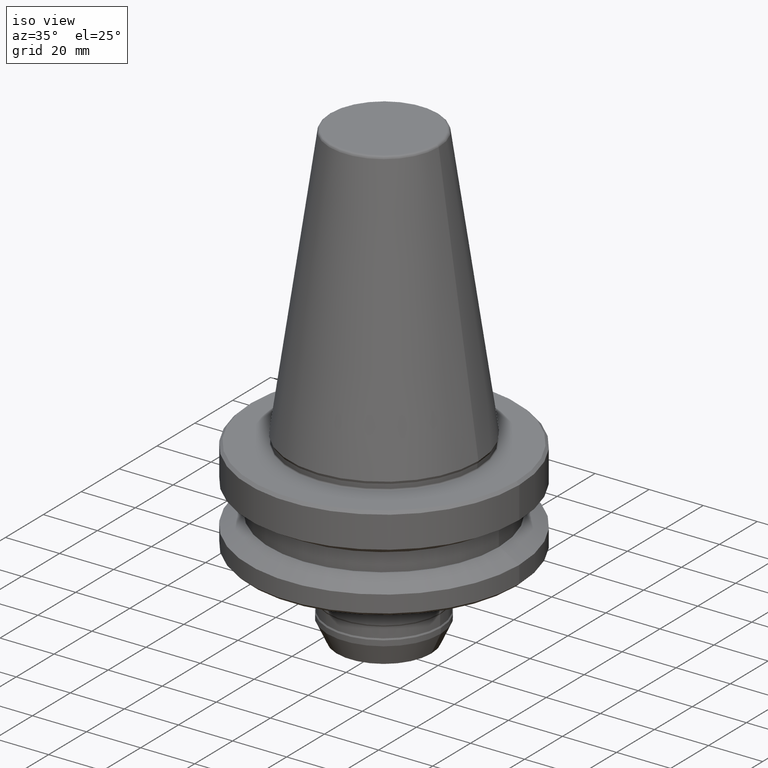
[diagram: clean part render]
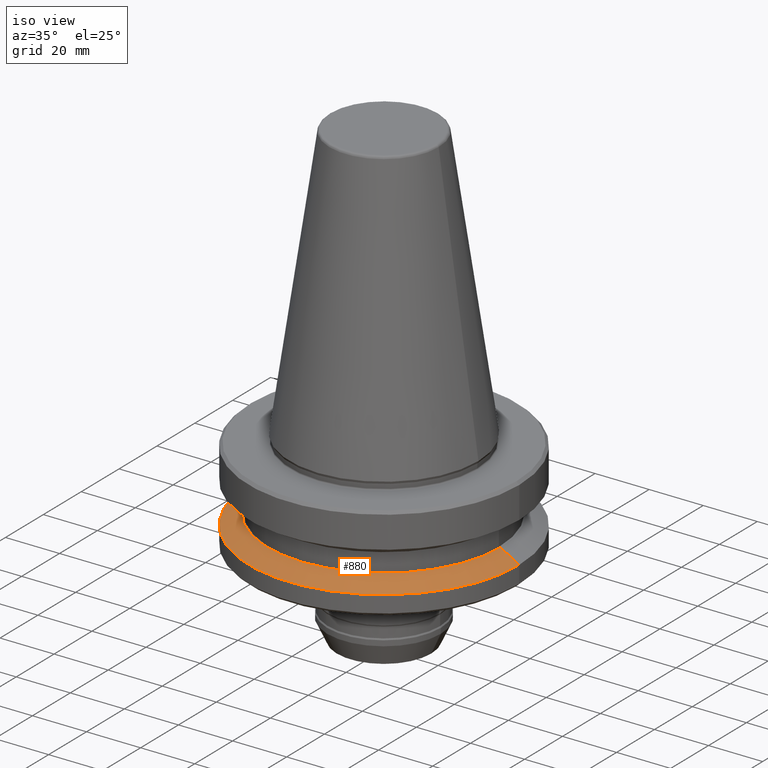
[diagram: same view with one face highlighted and labeled with its STEP entity id]
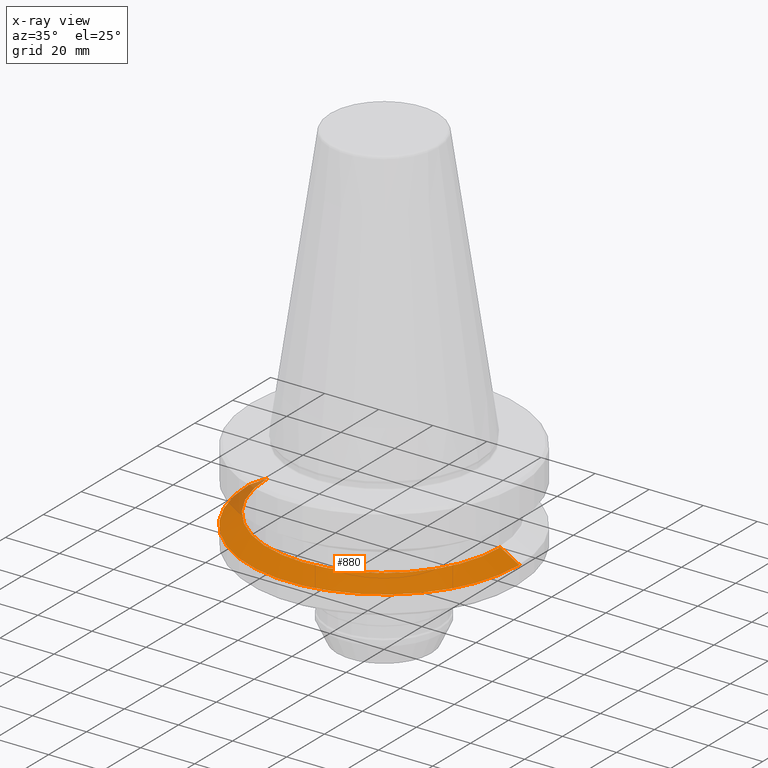
[diagram: x-ray of the same camera — body ghosted, the highlighted face saturated]
A machine part, iso view. The second image highlights one B-rep face of the part: STEP entity #880.
The next image is the same camera in x-ray: the body ghosted, the highlighted face saturated — about 5% of this face is hidden behind the body in this view.
In plain terms, the highlighted conical surface has half-angle 60 deg.
Its self-contained STEP definition (entity closure, byte-faithful):
#164 = DIRECTION ( 'NONE',  ( -0.0000000000000000000, -0.0000000000000000000, 1.000000000000000000 ) ) ;
#205 = CARTESIAN_POINT ( 'NONE',  ( 49.99999999999982200, 0.0000000000000000000, -30.69977999677475800 ) ) ;
#216 = CARTESIAN_POINT ( 'NONE',  ( -43.07217782648953600, 0.0000000000000000000, -26.70000000000061400 ) ) ;
#241 = VECTOR ( 'NONE', #904, 999.9999999999998900 ) ;
#242 = CONICAL_SURFACE ( 'NONE', #965, 49.99999999999982200, 1.047197551196584800 ) ;
#243 = LINE ( 'NONE', #995, #241 ) ;
#248 = FACE_OUTER_BOUND ( 'NONE', #1043, .T. ) ;
#312 = DIRECTION ( 'NONE',  ( 0.0000000000000000000, 0.0000000000000000000, -1.000000000000000000 ) ) ;
#318 = CIRCLE ( 'NONE', #1064, 43.07217782648953600 ) ;
#325 = EDGE_CURVE ( 'NONE', #1018, #614, #430, .T. ) ;
#379 = DIRECTION ( 'NONE',  ( -0.0000000000000000000, -0.0000000000000000000, 1.000000000000000000 ) ) ;
#394 = CIRCLE ( 'NONE', #643, 49.99999999999982200 ) ;
#415 = CARTESIAN_POINT ( 'NONE',  ( 0.0000000000000000000, 0.0000000000000000000, -30.69977999677475800 ) ) ;
#421 = VECTOR ( 'NONE', #869, 999.9999999999998900 ) ;
#430 = LINE ( 'NONE', #590, #421 ) ;
#494 = EDGE_CURVE ( 'NONE', #883, #614, #394, .T. ) ;
#590 = CARTESIAN_POINT ( 'NONE',  ( 49.99999999999982200, 6.123233995736744000E-015, -30.69977999677475800 ) ) ;
#614 = VERTEX_POINT ( 'NONE', #205 ) ;
#643 = AXIS2_PLACEMENT_3D ( 'NONE', #741, #164, #843 ) ;
#666 = EDGE_CURVE ( 'NONE', #874, #1018, #318, .T. ) ;
#741 = CARTESIAN_POINT ( 'NONE',  ( 0.0000000000000000000, 0.0000000000000000000, -30.69977999677475800 ) ) ;
#843 = DIRECTION ( 'NONE',  ( 1.000000000000000000, 0.0000000000000000000, 0.0000000000000000000 ) ) ;
#869 = DIRECTION ( 'NONE',  ( 0.8660254037844322700, 1.060575238724899000E-016, -0.5000000000000112100 ) ) ;
#874 = VERTEX_POINT ( 'NONE', #216 ) ;
#880 = ADVANCED_FACE ( 'NONE', ( #248 ), #242, .T. ) ;
#883 = VERTEX_POINT ( 'NONE', #1152 ) ;
#885 = EDGE_CURVE ( 'NONE', #874, #883, #243, .T. ) ;
#886 = ORIENTED_EDGE ( 'NONE', *, *, #325, .F. ) ;
#889 = ORIENTED_EDGE ( 'NONE', *, *, #666, .F. ) ;
#893 = ORIENTED_EDGE ( 'NONE', *, *, #885, .T. ) ;
#896 = ORIENTED_EDGE ( 'NONE', *, *, #494, .T. ) ;
#904 = DIRECTION ( 'NONE',  ( -0.8660254037844322700, 0.0000000000000000000, -0.5000000000000112100 ) ) ;
#965 = AXIS2_PLACEMENT_3D ( 'NONE', #415, #312, #1077 ) ;
#967 = CARTESIAN_POINT ( 'NONE',  ( 0.0000000000000000000, 0.0000000000000000000, -26.70000000000061400 ) ) ;
#995 = CARTESIAN_POINT ( 'NONE',  ( -49.99999999999982200, 0.0000000000000000000, -30.69977999677475800 ) ) ;
#1018 = VERTEX_POINT ( 'NONE', #1167 ) ;
#1043 = EDGE_LOOP ( 'NONE', ( #886, #889, #893, #896 ) ) ;
#1054 = DIRECTION ( 'NONE',  ( 1.000000000000000000, 0.0000000000000000000, 0.0000000000000000000 ) ) ;
#1064 = AXIS2_PLACEMENT_3D ( 'NONE', #967, #379, #1054 ) ;
#1077 = DIRECTION ( 'NONE',  ( -1.000000000000000000, 0.0000000000000000000, 0.0000000000000000000 ) ) ;
#1152 = CARTESIAN_POINT ( 'NONE',  ( -49.99999999999982200, 6.123233995736744000E-015, -30.69977999677475800 ) ) ;
#1167 = CARTESIAN_POINT ( 'NONE',  ( 43.07217782648953600, 5.699027233244171900E-015, -26.70000000000061400 ) ) ;